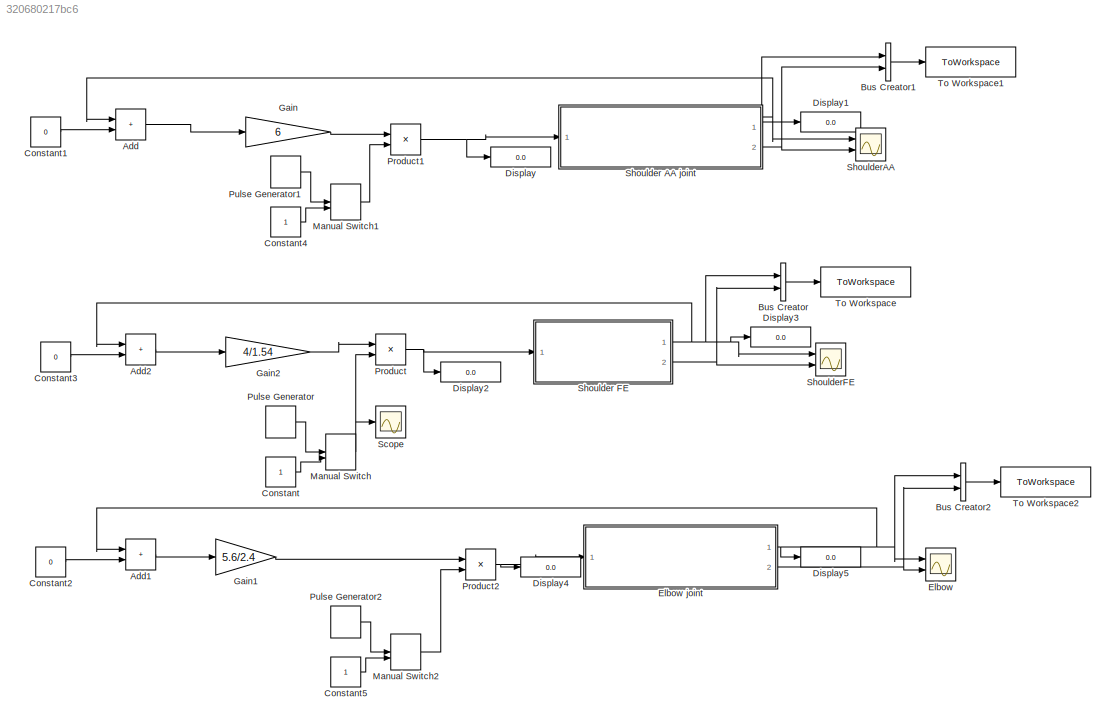
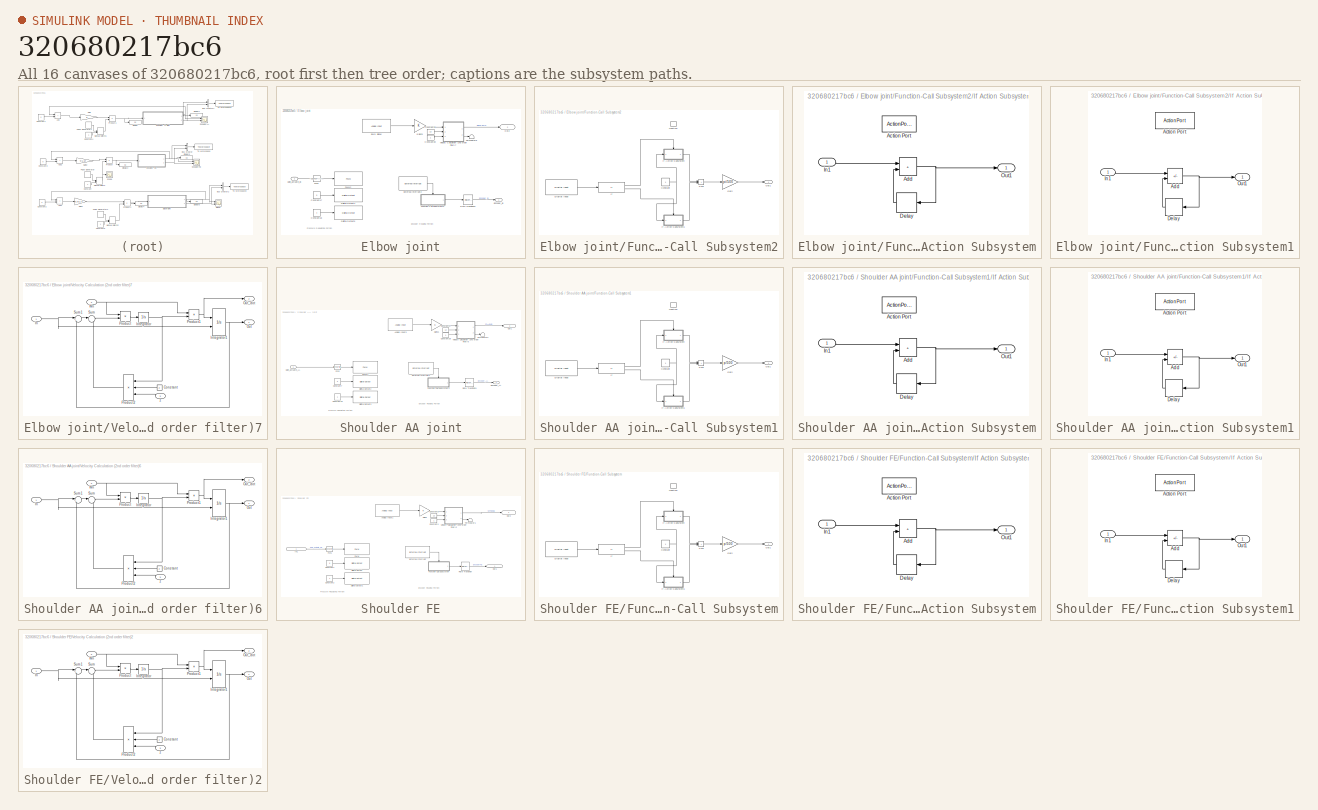
[diagram: thumbnail index - all 16 canvases of the model, root first then tree order]
MODEL slx_320680217bc6
KIND model
CONFIG AbsTol = auto
CONFIG EnableMultiTasking = off
CONFIG FixedStep = st
CONFIG MaxStep = auto
CONFIG MinStep = auto
CONFIG RelTol = 1e-3
CONFIG SampleTimeConstraint = Unconstrained
CONFIG Solver = FixedStepAuto
CONFIG SolverName = FixedStepAuto
CONFIG StartTime = 0.0
CONFIG StopTime = inf
BLOCK [Sum] Add
  IconShape = rectangular
  Ports = [2, 1]
BLOCK [Sum] Add1
  IconShape = rectangular
  Ports = [2, 1]
BLOCK [Sum] Add2
  IconShape = rectangular
  Ports = [2, 1]
BLOCK [BusCreator] Bus Creator
  DisplayOption = bar
  InheritFromInputs = on
  Inputs = 2
  Ports = [2, 1]
BLOCK [BusCreator] Bus Creator1
  DisplayOption = bar
  InheritFromInputs = on
  Inputs = 2
  Ports = [2, 1]
BLOCK [BusCreator] Bus Creator2
  DisplayOption = bar
  InheritFromInputs = on
  Inputs = 2
  Ports = [2, 1]
BLOCK [Constant] Constant
BLOCK [Constant] Constant1
  Value = 0
BLOCK [Constant] Constant2
  Value = 0
BLOCK [Constant] Constant3
  Value = 0
BLOCK [Constant] Constant4
BLOCK [Constant] Constant5
BLOCK [Display] Display
  Decimation = 1
  Ports = [1]
BLOCK [Display] Display1
  Decimation = 1
  Ports = [1]
BLOCK [Display] Display2
  Decimation = 1
  Ports = [1]
BLOCK [Display] Display3
  Decimation = 1
  Ports = [1]
BLOCK [Display] Display4
  Decimation = 1
  Ports = [1]
BLOCK [Display] Display5
  Decimation = 1
  Ports = [1]
BLOCK [Scope] Elbow
  Floating = off
  NumInputPorts = 2
  Ports = [2]
  ScopeSpecificationString = Simulink.scopes.TimeScopeBlockCfg('CurrentConfiguration', extmgr.ConfigurationSet(extmgr.Configuration('Core','General UI',true),extmgr.Configuration('Core','Source UI',true),extmgr.Configuration('Sources','WiredSimulink',true,'DataLogging',true,'DataLoggingSaveFormat','StructureWithTime','DataLoggingVariableName','ScopeData2'),extmgr.Configuration('Visuals','Time Domain',true,'SerializedDisplays'...<+2132ch>
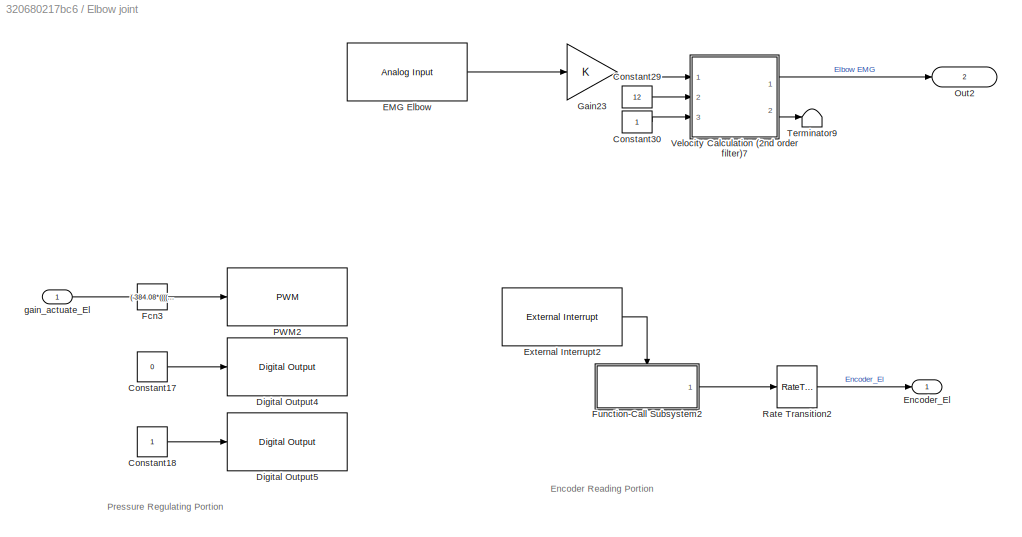
BLOCK [SubSystem] Elbow joint
  Ports = [1, 2]
  RequestExecContextInheritance = off
BLOCK [Constant] Elbow joint/Constant17
  SampleTime = -1
  Value = 0
BLOCK [Constant] Elbow joint/Constant18
  SampleTime = -1
BLOCK [Constant] Elbow joint/Constant29
  Value = 12
BLOCK [Constant] Elbow joint/Constant30
BLOCK [Reference] Elbow joint/Digital Output4  REF=arduinolib/Digital Output
  Ports = [1]
  SourceBlock = arduinolib/Digital Output
  SourceProductBaseCode = ARDUINO
  SourceType = Arduino Digital Output
BLOCK [Reference] Elbow joint/Digital Output5  REF=arduinolib/Digital Output
  Ports = [1]
  SourceBlock = arduinolib/Digital Output
  SourceProductBaseCode = ARDUINO
  SourceType = Arduino Digital Output
BLOCK [Reference] Elbow joint/EMG Elbow  REF=arduinolib/Analog Input
  Ports = [0, 1]
  SourceBlock = arduinolib/Analog Input
  SourceProductBaseCode = ARDUINO
  SourceType = Arduino Analog Input
BLOCK [Outport] Elbow joint/Encoder_El
BLOCK [Reference] Elbow joint/External Interrupt2  REF=arduinolib/External Interrupt
  Ports = [0, 1]
  SourceBlock = arduinolib/External Interrupt
  SourceProductBaseCode = ARDUINO
  SourceType = Arduino Interrupt Block
BLOCK [Fcn] Elbow joint/Fcn3
  Expr = (-384.08*((((u(1)*14.5038))/90))^4 + 789.52*((((u(1)*14.5038))/90))^3 - 618.81*((((u(1)*14.5038))/90))^2 + 468.18*((((u(1)*14.5038))/90)))
BLOCK [SubSystem] Elbow joint/Function-Call Subsystem2
  Ports = [0, 1, 0, 1]
  RequestExecContextInheritance = off
  TreatAsAtomicUnit = on
BLOCK [Constant] Elbow joint/Function-Call Subsystem2/Constant
BLOCK [Reference] Elbow joint/Function-Call Subsystem2/Digital Input  REF=arduinolib/Digital Input
  Ports = [0, 1]
  SourceBlock = arduinolib/Digital Input
  SourceProductBaseCode = ARDUINO
  SourceType = Arduino Digital Input
BLOCK [Gain] Elbow joint/Function-Call Subsystem2/Gain
  Gain = pi/500
BLOCK [If] Elbow joint/Function-Call Subsystem2/If
  ElseIfExpressions = u1 == 1
  IfExpression = u1 == 0
  Ports = [1, 2]
  ShowElse = off
BLOCK [SubSystem] Elbow joint/Function-Call Subsystem2/If Action Subsystem
  Ports = [1, 1, 0, 0, 0, 0, 0, 1]
  RequestExecContextInheritance = off
  TreatAsAtomicUnit = on
BLOCK [ActionPort] Elbow joint/Function-Call Subsystem2/If Action Subsystem/Action Port
  ActionPortLabel = if(u1 == 0)
BLOCK [Sum] Elbow joint/Function-Call Subsystem2/If Action Subsystem/Add
  IconShape = rectangular
  Ports = [2, 1]
BLOCK [Delay] Elbow joint/Function-Call Subsystem2/If Action Subsystem/Delay
  DelayLength = 1
  InputPortMap = u0
  Ports = [1, 1]
BLOCK [Inport] Elbow joint/Function-Call Subsystem2/If Action Subsystem/In1
BLOCK [Outport] Elbow joint/Function-Call Subsystem2/If Action Subsystem/Out1
BLOCK [SubSystem] Elbow joint/Function-Call Subsystem2/If Action Subsystem1
  Ports = [1, 1, 0, 0, 0, 0, 0, 1]
  RequestExecContextInheritance = off
  TreatAsAtomicUnit = on
BLOCK [ActionPort] Elbow joint/Function-Call Subsystem2/If Action Subsystem1/Action Port
  ActionPortLabel = elseif(u1 == 1)
BLOCK [Sum] Elbow joint/Function-Call Subsystem2/If Action Subsystem1/Add
  IconShape = rectangular
  Inputs = -+
  Ports = [2, 1]
BLOCK [Delay] Elbow joint/Function-Call Subsystem2/If Action Subsystem1/Delay
  DelayLength = 1
  InputPortMap = u0
  Ports = [1, 1]
BLOCK [Inport] Elbow joint/Function-Call Subsystem2/If Action Subsystem1/In1
BLOCK [Outport] Elbow joint/Function-Call Subsystem2/If Action Subsystem1/Out1
BLOCK [Outport] Elbow joint/Function-Call Subsystem2/Out1
BLOCK [Sum] Elbow joint/Function-Call Subsystem2/Sum
  IconShape = rectangular
  Ports = [2, 1]
BLOCK [TriggerPort] Elbow joint/Function-Call Subsystem2/function
  Ports = []
  StatesWhenEnabling = held
  TriggerType = function-call
  VariantControl = Variant
BLOCK [Gain] Elbow joint/Gain23
  OutDataTypeStr = double
BLOCK [Outport] Elbow joint/Out2
  IconDisplay = Signal name
  Port = 2
BLOCK [Reference] Elbow joint/PWM2  REF=arduinolib/PWM
  Ports = [1]
  SourceBlock = arduinolib/PWM
  SourceProductBaseCode = ARDUINO
  SourceType = Arduino PWM
BLOCK [RateTransition] Elbow joint/Rate Transition2
  Deterministic = off
  OutPortSampleTimeOpt = Inherit
BLOCK [Terminator] Elbow joint/Terminator9
BLOCK [SubSystem] Elbow joint/Velocity Calculation (2nd order filter)7
  Ports = [3, 2]
  RequestExecContextInheritance = off
BLOCK [Constant] Elbow joint/Velocity Calculation (2nd order filter)7/Constant
  Value = 2
BLOCK [Inport] Elbow joint/Velocity Calculation (2nd order filter)7/In
BLOCK [Integrator] Elbow joint/Velocity Calculation (2nd order filter)7/Integrator
  Ports = [1, 1]
BLOCK [Integrator] Elbow joint/Velocity Calculation (2nd order filter)7/Integrator1
  InitialConditionSource = external
  Ports = [2, 1]
BLOCK [Outport] Elbow joint/Velocity Calculation (2nd order filter)7/Out
BLOCK [Outport] Elbow joint/Velocity Calculation (2nd order filter)7/Out_dot
  Port = 2
BLOCK [Product] Elbow joint/Velocity Calculation (2nd order filter)7/Product
  Ports = [2, 1]
  RndMeth = Zero
BLOCK [Product] Elbow joint/Velocity Calculation (2nd order filter)7/Product1
  Ports = [2, 1]
  RndMeth = Zero
BLOCK [Product] Elbow joint/Velocity Calculation (2nd order filter)7/Product2
  Inputs = 3
  Ports = [3, 1]
  RndMeth = Zero
BLOCK [Sum] Elbow joint/Velocity Calculation (2nd order filter)7/Sum
  Inputs = |+-
  Ports = [2, 1]
BLOCK [Sum] Elbow joint/Velocity Calculation (2nd order filter)7/Sum1
  Inputs = |+-
  Ports = [2, 1]
BLOCK [Inport] Elbow joint/Velocity Calculation (2nd order filter)7/Wn
  Port = 2
BLOCK [Inport] Elbow joint/Velocity Calculation (2nd order filter)7/z
  Port = 3
BLOCK [Inport] Elbow joint/gain_actuate_El
BLOCK [Gain] Gain
  Gain = 6
BLOCK [Gain] Gain1
  Gain = 5.6/2.4
BLOCK [Gain] Gain2
  Gain = 4/1.54
BLOCK [ManualSwitch] Manual Switch
  CurrentSetting = 0
BLOCK [ManualSwitch] Manual Switch1
  CurrentSetting = 0
BLOCK [ManualSwitch] Manual Switch2
  CurrentSetting = 0
BLOCK [Product] Product
  Ports = [2, 1]
BLOCK [Product] Product1
  Ports = [2, 1]
BLOCK [Product] Product2
  Ports = [2, 1]
BLOCK [DiscretePulseGenerator] Pulse Generator
  Period = 7
  Ports = [0, 1]
  PulseType = Time based
  PulseWidth = 90
BLOCK [DiscretePulseGenerator] Pulse Generator1
  Period = 7
  Ports = [0, 1]
  PulseType = Time based
  PulseWidth = 90
BLOCK [DiscretePulseGenerator] Pulse Generator2
  Period = 7
  Ports = [0, 1]
  PulseType = Time based
  PulseWidth = 90
BLOCK [Scope] Scope
  Floating = off
  NumInputPorts = 1
  Ports = [1]
  ScopeSpecificationString = Simulink.scopes.TimeScopeBlockCfg('CurrentConfiguration', extmgr.ConfigurationSet(extmgr.Configuration('Core','General UI',true),extmgr.Configuration('Core','Source UI',true),extmgr.Configuration('Sources','WiredSimulink',true,'DataLoggingVariableName','ScopeData1'),extmgr.Configuration('Visuals','Time Domain',true,'SerializedDisplays',{struct('MinYLimReal','0.9','MaxYLimReal','1.1','YLabelReal','...<+1399ch>
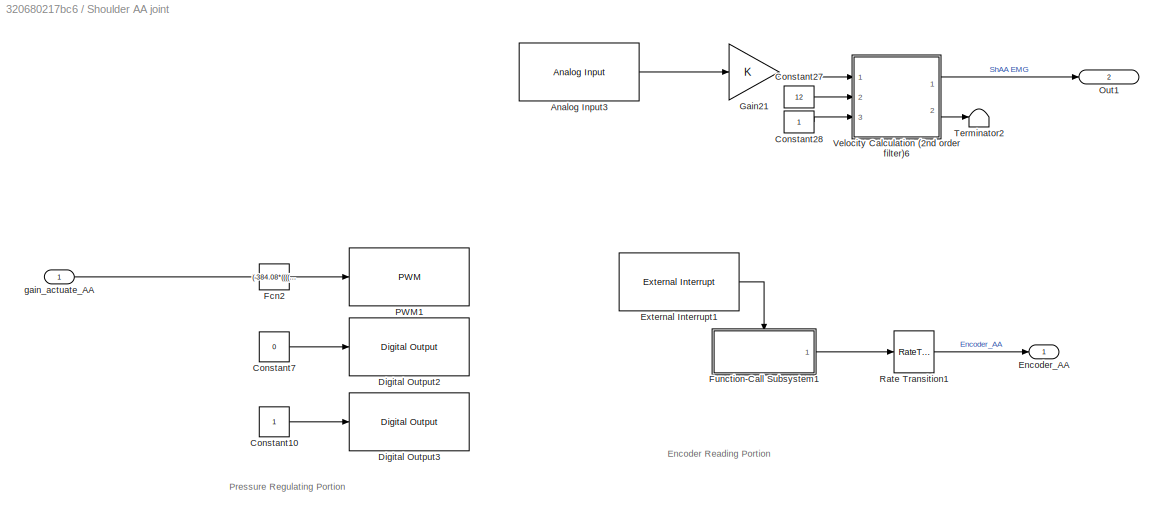
BLOCK [SubSystem] Shoulder AA joint
  Ports = [1, 2]
  RequestExecContextInheritance = off
BLOCK [Reference] Shoulder AA joint/Analog Input3  REF=arduinolib/Analog Input
  Ports = [0, 1]
  SourceBlock = arduinolib/Analog Input
  SourceProductBaseCode = ARDUINO
  SourceType = Arduino Analog Input
BLOCK [Constant] Shoulder AA joint/Constant10
  SampleTime = -1
BLOCK [Constant] Shoulder AA joint/Constant27
  Value = 12
BLOCK [Constant] Shoulder AA joint/Constant28
BLOCK [Constant] Shoulder AA joint/Constant7
  SampleTime = -1
  Value = 0
BLOCK [Reference] Shoulder AA joint/Digital Output2  REF=arduinolib/Digital Output
  Ports = [1]
  SourceBlock = arduinolib/Digital Output
  SourceProductBaseCode = ARDUINO
  SourceType = Arduino Digital Output
BLOCK [Reference] Shoulder AA joint/Digital Output3  REF=arduinolib/Digital Output
  Ports = [1]
  SourceBlock = arduinolib/Digital Output
  SourceProductBaseCode = ARDUINO
  SourceType = Arduino Digital Output
BLOCK [Outport] Shoulder AA joint/Encoder_AA
BLOCK [Reference] Shoulder AA joint/External Interrupt1  REF=arduinolib/External Interrupt
  Ports = [0, 1]
  SourceBlock = arduinolib/External Interrupt
  SourceProductBaseCode = ARDUINO
  SourceType = Arduino Interrupt Block
BLOCK [Fcn] Shoulder AA joint/Fcn2
  Expr = (-384.08*((((u(1)*14.5038))/90))^4 + 789.52*((((u(1)*14.5038))/90))^3 - 618.81*((((u(1)*14.5038))/90))^2 + 468.18*((((u(1)*14.5038))/90)))
BLOCK [SubSystem] Shoulder AA joint/Function-Call Subsystem1
  Ports = [0, 1, 0, 1]
  RequestExecContextInheritance = off
  TreatAsAtomicUnit = on
BLOCK [Constant] Shoulder AA joint/Function-Call Subsystem1/Constant
BLOCK [Reference] Shoulder AA joint/Function-Call Subsystem1/Digital Input  REF=arduinolib/Digital Input
  Ports = [0, 1]
  SourceBlock = arduinolib/Digital Input
  SourceProductBaseCode = ARDUINO
  SourceType = Arduino Digital Input
BLOCK [Gain] Shoulder AA joint/Function-Call Subsystem1/Gain
  Gain = p/500
BLOCK [If] Shoulder AA joint/Function-Call Subsystem1/If
  ElseIfExpressions = u1 == 1
  IfExpression = u1 == 0
  Ports = [1, 2]
  ShowElse = off
BLOCK [SubSystem] Shoulder AA joint/Function-Call Subsystem1/If Action Subsystem
  Ports = [1, 1, 0, 0, 0, 0, 0, 1]
  RequestExecContextInheritance = off
  TreatAsAtomicUnit = on
BLOCK [ActionPort] Shoulder AA joint/Function-Call Subsystem1/If Action Subsystem/Action Port
  ActionPortLabel = if(u1 == 0)
BLOCK [Sum] Shoulder AA joint/Function-Call Subsystem1/If Action Subsystem/Add
  IconShape = rectangular
  Ports = [2, 1]
BLOCK [Delay] Shoulder AA joint/Function-Call Subsystem1/If Action Subsystem/Delay
  DelayLength = 1
  InputPortMap = u0
  Ports = [1, 1]
BLOCK [Inport] Shoulder AA joint/Function-Call Subsystem1/If Action Subsystem/In1
BLOCK [Outport] Shoulder AA joint/Function-Call Subsystem1/If Action Subsystem/Out1
BLOCK [SubSystem] Shoulder AA joint/Function-Call Subsystem1/If Action Subsystem1
  Ports = [1, 1, 0, 0, 0, 0, 0, 1]
  RequestExecContextInheritance = off
  TreatAsAtomicUnit = on
BLOCK [ActionPort] Shoulder AA joint/Function-Call Subsystem1/If Action Subsystem1/Action Port
  ActionPortLabel = elseif(u1 == 1)
BLOCK [Sum] Shoulder AA joint/Function-Call Subsystem1/If Action Subsystem1/Add
  IconShape = rectangular
  Inputs = -+
  Ports = [2, 1]
BLOCK [Delay] Shoulder AA joint/Function-Call Subsystem1/If Action Subsystem1/Delay
  DelayLength = 1
  InputPortMap = u0
  Ports = [1, 1]
BLOCK [Inport] Shoulder AA joint/Function-Call Subsystem1/If Action Subsystem1/In1
BLOCK [Outport] Shoulder AA joint/Function-Call Subsystem1/If Action Subsystem1/Out1
BLOCK [Outport] Shoulder AA joint/Function-Call Subsystem1/Out1
BLOCK [Sum] Shoulder AA joint/Function-Call Subsystem1/Sum
  IconShape = rectangular
  Ports = [2, 1]
BLOCK [TriggerPort] Shoulder AA joint/Function-Call Subsystem1/function
  Ports = []
  StatesWhenEnabling = held
  TriggerType = function-call
  VariantControl = Variant
BLOCK [Gain] Shoulder AA joint/Gain21
  OutDataTypeStr = double
BLOCK [Outport] Shoulder AA joint/Out1
  IconDisplay = Signal name
  Port = 2
BLOCK [Reference] Shoulder AA joint/PWM1  REF=arduinolib/PWM
  Ports = [1]
  SourceBlock = arduinolib/PWM
  SourceProductBaseCode = ARDUINO
  SourceType = Arduino PWM
BLOCK [RateTransition] Shoulder AA joint/Rate Transition1
  Deterministic = off
  OutPortSampleTimeOpt = Inherit
BLOCK [Terminator] Shoulder AA joint/Terminator2
BLOCK [SubSystem] Shoulder AA joint/Velocity Calculation (2nd order filter)6
  Ports = [3, 2]
  RequestExecContextInheritance = off
BLOCK [Constant] Shoulder AA joint/Velocity Calculation (2nd order filter)6/Constant
  Value = 2
BLOCK [Inport] Shoulder AA joint/Velocity Calculation (2nd order filter)6/In
BLOCK [Integrator] Shoulder AA joint/Velocity Calculation (2nd order filter)6/Integrator
  Ports = [1, 1]
BLOCK [Integrator] Shoulder AA joint/Velocity Calculation (2nd order filter)6/Integrator1
  InitialConditionSource = external
  Ports = [2, 1]
BLOCK [Outport] Shoulder AA joint/Velocity Calculation (2nd order filter)6/Out
BLOCK [Outport] Shoulder AA joint/Velocity Calculation (2nd order filter)6/Out_dot
  Port = 2
BLOCK [Product] Shoulder AA joint/Velocity Calculation (2nd order filter)6/Product
  Ports = [2, 1]
  RndMeth = Zero
BLOCK [Product] Shoulder AA joint/Velocity Calculation (2nd order filter)6/Product1
  Ports = [2, 1]
  RndMeth = Zero
BLOCK [Product] Shoulder AA joint/Velocity Calculation (2nd order filter)6/Product2
  Inputs = 3
  Ports = [3, 1]
  RndMeth = Zero
BLOCK [Sum] Shoulder AA joint/Velocity Calculation (2nd order filter)6/Sum
  Inputs = |+-
  Ports = [2, 1]
BLOCK [Sum] Shoulder AA joint/Velocity Calculation (2nd order filter)6/Sum1
  Inputs = |+-
  Ports = [2, 1]
BLOCK [Inport] Shoulder AA joint/Velocity Calculation (2nd order filter)6/Wn
  Port = 2
BLOCK [Inport] Shoulder AA joint/Velocity Calculation (2nd order filter)6/z
  Port = 3
BLOCK [Inport] Shoulder AA joint/gain_actuate_AA
BLOCK [SubSystem] Shoulder FE
  Ports = [1, 2]
  RequestExecContextInheritance = off
BLOCK [Reference] Shoulder FE/Analog Input1  REF=arduinolib/Analog Input
  Ports = [0, 1]
  SourceBlock = arduinolib/Analog Input
  SourceProductBaseCode = ARDUINO
  SourceType = Arduino Analog Input
BLOCK [Constant] Shoulder FE/Constant1
  SampleTime = -1
  Value = 0
BLOCK [Constant] Shoulder FE/Constant2
  SampleTime = -1
BLOCK [Constant] Shoulder FE/Constant3
  Value = 12
BLOCK [Constant] Shoulder FE/Constant4
BLOCK [Reference] Shoulder FE/Digital Output  REF=arduinolib/Digital Output
  Ports = [1]
  SourceBlock = arduinolib/Digital Output
  SourceProductBaseCode = ARDUINO
  SourceType = Arduino Digital Output
BLOCK [Reference] Shoulder FE/Digital Output1  REF=arduinolib/Digital Output
  Ports = [1]
  SourceBlock = arduinolib/Digital Output
  SourceProductBaseCode = ARDUINO
  SourceType = Arduino Digital Output
BLOCK [Reference] Shoulder FE/External Interrupt  REF=arduinolib/External Interrupt
  Ports = [0, 1]
  SourceBlock = arduinolib/External Interrupt
  SourceProductBaseCode = ARDUINO
  SourceType = Arduino Interrupt Block
BLOCK [Fcn] Shoulder FE/Fcn1
  Expr = (-384.08*((((u(1)*14.5038))/90))^4 + 789.52*((((u(1)*14.5038))/90))^3 - 618.81*((((u(1)*14.5038))/90))^2 + 468.18*((((u(1)*14.5038))/90)))
BLOCK [SubSystem] Shoulder FE/Function-Call Subsystem
  Ports = [0, 1, 0, 1]
  RequestExecContextInheritance = off
  TreatAsAtomicUnit = on
BLOCK [Constant] Shoulder FE/Function-Call Subsystem/Constant
BLOCK [Reference] Shoulder FE/Function-Call Subsystem/Digital Input  REF=arduinolib/Digital Input
  Ports = [0, 1]
  SourceBlock = arduinolib/Digital Input
  SourceProductBaseCode = ARDUINO
  SourceType = Arduino Digital Input
BLOCK [Gain] Shoulder FE/Function-Call Subsystem/Gain
  Gain = p/500
BLOCK [If] Shoulder FE/Function-Call Subsystem/If
  ElseIfExpressions = u1 == 1
  IfExpression = u1 == 0
  Ports = [1, 2]
  ShowElse = off
BLOCK [SubSystem] Shoulder FE/Function-Call Subsystem/If Action Subsystem
  Ports = [1, 1, 0, 0, 0, 0, 0, 1]
  RequestExecContextInheritance = off
  TreatAsAtomicUnit = on
BLOCK [ActionPort] Shoulder FE/Function-Call Subsystem/If Action Subsystem/Action Port
  ActionPortLabel = if(u1 == 0)
BLOCK [Sum] Shoulder FE/Function-Call Subsystem/If Action Subsystem/Add
  IconShape = rectangular
  Ports = [2, 1]
BLOCK [Delay] Shoulder FE/Function-Call Subsystem/If Action Subsystem/Delay
  DelayLength = 1
  InputPortMap = u0
  Ports = [1, 1]
BLOCK [Inport] Shoulder FE/Function-Call Subsystem/If Action Subsystem/In1
BLOCK [Outport] Shoulder FE/Function-Call Subsystem/If Action Subsystem/Out1
BLOCK [SubSystem] Shoulder FE/Function-Call Subsystem/If Action Subsystem1
  Ports = [1, 1, 0, 0, 0, 0, 0, 1]
  RequestExecContextInheritance = off
  TreatAsAtomicUnit = on
BLOCK [ActionPort] Shoulder FE/Function-Call Subsystem/If Action Subsystem1/Action Port
  ActionPortLabel = elseif(u1 == 1)
BLOCK [Sum] Shoulder FE/Function-Call Subsystem/If Action Subsystem1/Add
  IconShape = rectangular
  Inputs = -+
  Ports = [2, 1]
BLOCK [Delay] Shoulder FE/Function-Call Subsystem/If Action Subsystem1/Delay
  DelayLength = 1
  InputPortMap = u0
  Ports = [1, 1]
BLOCK [Inport] Shoulder FE/Function-Call Subsystem/If Action Subsystem1/In1
BLOCK [Outport] Shoulder FE/Function-Call Subsystem/If Action Subsystem1/Out1
BLOCK [Outport] Shoulder FE/Function-Call Subsystem/Out1
BLOCK [Sum] Shoulder FE/Function-Call Subsystem/Sum
  IconShape = rectangular
  Ports = [2, 1]
BLOCK [TriggerPort] Shoulder FE/Function-Call Subsystem/function
  Ports = []
  StatesWhenEnabling = held
  TriggerType = function-call
  VariantControl = Variant
BLOCK [Gain] Shoulder FE/Gain2
  OutDataTypeStr = double
BLOCK [Inport] Shoulder FE/In1
  IconDisplay = Signal name
BLOCK [Outport] Shoulder FE/Out1
  IconDisplay = Signal name
BLOCK [Outport] Shoulder FE/Out2
  IconDisplay = Signal name
  Port = 2
BLOCK [Reference] Shoulder FE/PWM  REF=arduinolib/PWM
  Ports = [1]
  SourceBlock = arduinolib/PWM
  SourceProductBaseCode = ARDUINO
  SourceType = Arduino PWM
BLOCK [RateTransition] Shoulder FE/Rate Transition
  Deterministic = off
  OutPortSampleTimeOpt = Inherit
BLOCK [Terminator] Shoulder FE/Terminator1
BLOCK [SubSystem] Shoulder FE/Velocity Calculation (2nd order filter)2
  Ports = [3, 2]
  RequestExecContextInheritance = off
BLOCK [Constant] Shoulder FE/Velocity Calculation (2nd order filter)2/Constant
  Value = 2
BLOCK [Inport] Shoulder FE/Velocity Calculation (2nd order filter)2/In
BLOCK [Integrator] Shoulder FE/Velocity Calculation (2nd order filter)2/Integrator
  Ports = [1, 1]
BLOCK [Integrator] Shoulder FE/Velocity Calculation (2nd order filter)2/Integrator1
  InitialConditionSource = external
  Ports = [2, 1]
BLOCK [Outport] Shoulder FE/Velocity Calculation (2nd order filter)2/Out
BLOCK [Outport] Shoulder FE/Velocity Calculation (2nd order filter)2/Out_dot
  Port = 2
BLOCK [Product] Shoulder FE/Velocity Calculation (2nd order filter)2/Product
  Ports = [2, 1]
  RndMeth = Zero
BLOCK [Product] Shoulder FE/Velocity Calculation (2nd order filter)2/Product1
  Ports = [2, 1]
  RndMeth = Zero
BLOCK [Product] Shoulder FE/Velocity Calculation (2nd order filter)2/Product2
  Inputs = 3
  Ports = [3, 1]
  RndMeth = Zero
BLOCK [Sum] Shoulder FE/Velocity Calculation (2nd order filter)2/Sum
  Inputs = |+-
  Ports = [2, 1]
BLOCK [Sum] Shoulder FE/Velocity Calculation (2nd order filter)2/Sum1
  Inputs = |+-
  Ports = [2, 1]
BLOCK [Inport] Shoulder FE/Velocity Calculation (2nd order filter)2/Wn
  Port = 2
BLOCK [Inport] Shoulder FE/Velocity Calculation (2nd order filter)2/z
  Port = 3
BLOCK [Scope] ShoulderAA
  Floating = off
  NumInputPorts = 2
  Ports = [2]
  ScopeSpecificationString = Simulink.scopes.TimeScopeBlockCfg('CurrentConfiguration', extmgr.ConfigurationSet(extmgr.Configuration('Core','General UI',true),extmgr.Configuration('Core','Source UI',true),extmgr.Configuration('Sources','WiredSimulink',true,'DataLogging',true,'DataLoggingSaveFormat','StructureWithTime','DataLoggingVariableName','ScopeData1'),extmgr.Configuration('Visuals','Time Domain',true,'SerializedDisplays'...<+2134ch>
BLOCK [Scope] ShoulderFE
  Floating = off
  NumInputPorts = 2
  Ports = [2]
  ScopeSpecificationString = Simulink.scopes.TimeScopeBlockCfg('CurrentConfiguration', extmgr.ConfigurationSet(extmgr.Configuration('Core','General UI',true),extmgr.Configuration('Core','Source UI',true),extmgr.Configuration('Sources','WiredSimulink',true,'DataLogging',true,'DataLoggingSaveFormat','StructureWithTime','DataLoggingVariableName','ScopeData2'),extmgr.Configuration('Visuals','Time Domain',true,'SerializedDisplays'...<+2123ch>
BLOCK [ToWorkspace] To Workspace
  FixptAsFi = on
  MaxDataPoints = inf
  Ports = [1]
  SampleTime = -1
  VariableName = ShFE
BLOCK [ToWorkspace] To Workspace1
  FixptAsFi = on
  MaxDataPoints = inf
  Ports = [1]
  SampleTime = -1
  VariableName = ShAA
BLOCK [ToWorkspace] To Workspace2
  FixptAsFi = on
  MaxDataPoints = inf
  Ports = [1]
  SampleTime = -1
  VariableName = Elbow
ANNOTATION Elbow joint: Encoder Reading Portion
ANNOTATION Elbow joint: Pressure Regulating Portion
ANNOTATION Shoulder AA joint: Encoder Reading Portion
ANNOTATION Shoulder AA joint: Pressure Regulating Portion
ANNOTATION Shoulder FE: Encoder Reading Portion
ANNOTATION Shoulder FE: Pressure Regulating Portion
LINE Add1:1 -> Gain1:1
LINE Add2:1 -> Gain2:1
LINE Add:1 -> Gain:1
LINE Bus Creator1:1 -> To Workspace1:1
LINE Bus Creator2:1 -> To Workspace2:1
LINE Bus Creator:1 -> To Workspace:1
LINE Constant1:1 -> Add:2
LINE Constant2:1 -> Add1:2
LINE Constant3:1 -> Add2:2
LINE Constant4:1 -> Manual Switch1:2
LINE Constant5:1 -> Manual Switch2:2
LINE Constant:1 -> Manual Switch:2
LINE Elbow joint/Constant17:1 -> Elbow joint/Digital Output4:1
LINE Elbow joint/Constant18:1 -> Elbow joint/Digital Output5:1
LINE Elbow joint/Constant29:1 -> Elbow joint/Velocity Calculation (2nd order filter)7:2
LINE Elbow joint/Constant30:1 -> Elbow joint/Velocity Calculation (2nd order filter)7:3
LINE Elbow joint/EMG Elbow:1 -> Elbow joint/Gain23:1
LINE Elbow joint/External Interrupt2:1 -> Elbow joint/Function-Call Subsystem2:trigger
LINE Elbow joint/Fcn3:1 -> Elbow joint/PWM2:1
NET Elbow joint/Function-Call Subsystem2/Constant:1 -> Elbow joint/Function-Call Subsystem2/If Action Subsystem1:1, Elbow joint/Function-Call Subsystem2/If Action Subsystem:1
LINE Elbow joint/Function-Call Subsystem2/Digital Input:1 -> Elbow joint/Function-Call Subsystem2/If:1
LINE Elbow joint/Function-Call Subsystem2/Gain:1 -> Elbow joint/Function-Call Subsystem2/Out1:1
NET Elbow joint/Function-Call Subsystem2/If Action Subsystem/Add:1 -> Elbow joint/Function-Call Subsystem2/If Action Subsystem/Delay:1, Elbow joint/Function-Call Subsystem2/If Action Subsystem/Out1:1
LINE Elbow joint/Function-Call Subsystem2/If Action Subsystem/Delay:1 -> Elbow joint/Function-Call Subsystem2/If Action Subsystem/Add:2
LINE Elbow joint/Function-Call Subsystem2/If Action Subsystem/In1:1 -> Elbow joint/Function-Call Subsystem2/If Action Subsystem/Add:1
NET Elbow joint/Function-Call Subsystem2/If Action Subsystem1/Add:1 -> Elbow joint/Function-Call Subsystem2/If Action Subsystem1/Delay:1, Elbow joint/Function-Call Subsystem2/If Action Subsystem1/Out1:1
LINE Elbow joint/Function-Call Subsystem2/If Action Subsystem1/Delay:1 -> Elbow joint/Function-Call Subsystem2/If Action Subsystem1/Add:2
LINE Elbow joint/Function-Call Subsystem2/If Action Subsystem1/In1:1 -> Elbow joint/Function-Call Subsystem2/If Action Subsystem1/Add:1
LINE Elbow joint/Function-Call Subsystem2/If Action Subsystem1:1 -> Elbow joint/Function-Call Subsystem2/Sum:2
LINE Elbow joint/Function-Call Subsystem2/If Action Subsystem:1 -> Elbow joint/Function-Call Subsystem2/Sum:1
LINE Elbow joint/Function-Call Subsystem2/If:1 -> Elbow joint/Function-Call Subsystem2/If Action Subsystem:ifaction
LINE Elbow joint/Function-Call Subsystem2/If:2 -> Elbow joint/Function-Call Subsystem2/If Action Subsystem1:ifaction
LINE Elbow joint/Function-Call Subsystem2/Sum:1 -> Elbow joint/Function-Call Subsystem2/Gain:1
LINE Elbow joint/Function-Call Subsystem2:1 -> Elbow joint/Rate Transition2:1
LINE Elbow joint/Gain23:1 -> Elbow joint/Velocity Calculation (2nd order filter)7:1
LINE Elbow joint/Rate Transition2:1 -> Elbow joint/Encoder_El:1
LINE Elbow joint/Velocity Calculation (2nd order filter)7/Constant:1 -> Elbow joint/Velocity Calculation (2nd order filter)7/Product2:2
NET Elbow joint/Velocity Calculation (2nd order filter)7/In:1 -> Elbow joint/Velocity Calculation (2nd order filter)7/Integrator1:2, Elbow joint/Velocity Calculation (2nd order filter)7/Sum1:1
NET Elbow joint/Velocity Calculation (2nd order filter)7/Integrator1:1 -> Elbow joint/Velocity Calculation (2nd order filter)7/Out:1, Elbow joint/Velocity Calculation (2nd order filter)7/Sum1:2
NET Elbow joint/Velocity Calculation (2nd order filter)7/Integrator:1 -> Elbow joint/Velocity Calculation (2nd order filter)7/Product1:2, Elbow joint/Velocity Calculation (2nd order filter)7/Product2:1
NET Elbow joint/Velocity Calculation (2nd order filter)7/Product1:1 -> Elbow joint/Velocity Calculation (2nd order filter)7/Integrator1:1, Elbow joint/Velocity Calculation (2nd order filter)7/Out_dot:1
LINE Elbow joint/Velocity Calculation (2nd order filter)7/Product2:1 -> Elbow joint/Velocity Calculation (2nd order filter)7/Sum:2
LINE Elbow joint/Velocity Calculation (2nd order filter)7/Product:1 -> Elbow joint/Velocity Calculation (2nd order filter)7/Integrator:1
LINE Elbow joint/Velocity Calculation (2nd order filter)7/Sum1:1 -> Elbow joint/Velocity Calculation (2nd order filter)7/Sum:1
LINE Elbow joint/Velocity Calculation (2nd order filter)7/Sum:1 -> Elbow joint/Velocity Calculation (2nd order filter)7/Product:2
NET Elbow joint/Velocity Calculation (2nd order filter)7/Wn:1 -> Elbow joint/Velocity Calculation (2nd order filter)7/Product1:1, Elbow joint/Velocity Calculation (2nd order filter)7/Product:1
LINE Elbow joint/Velocity Calculation (2nd order filter)7/z:1 -> Elbow joint/Velocity Calculation (2nd order filter)7/Product2:3
LINE Elbow joint/Velocity Calculation (2nd order filter)7:1 -> Elbow joint/Out2:1
LINE Elbow joint/Velocity Calculation (2nd order filter)7:2 -> Elbow joint/Terminator9:1
LINE Elbow joint/gain_actuate_El:1 -> Elbow joint/Fcn3:1
NET Elbow joint:1 -> Add1:1, Bus Creator2:1, Display5:1, Elbow:1
NET Elbow joint:2 -> Bus Creator2:2, Elbow:2
LINE Gain1:1 -> Product2:1
LINE Gain2:1 -> Product:1
LINE Gain:1 -> Product1:1
LINE Manual Switch1:1 -> Product1:2
LINE Manual Switch2:1 -> Product2:2
NET Manual Switch:1 -> Product:2, Scope:1
NET Product1:1 -> Display:1, Shoulder AA joint:1
NET Product2:1 -> Display4:1, Elbow joint:1
NET Product:1 -> Display2:1, Shoulder FE:1
LINE Pulse Generator1:1 -> Manual Switch1:1
LINE Pulse Generator2:1 -> Manual Switch2:1
LINE Pulse Generator:1 -> Manual Switch:1
LINE Shoulder AA joint/Analog Input3:1 -> Shoulder AA joint/Gain21:1
LINE Shoulder AA joint/Constant10:1 -> Shoulder AA joint/Digital Output3:1
LINE Shoulder AA joint/Constant27:1 -> Shoulder AA joint/Velocity Calculation (2nd order filter)6:2
LINE Shoulder AA joint/Constant28:1 -> Shoulder AA joint/Velocity Calculation (2nd order filter)6:3
LINE Shoulder AA joint/Constant7:1 -> Shoulder AA joint/Digital Output2:1
LINE Shoulder AA joint/External Interrupt1:1 -> Shoulder AA joint/Function-Call Subsystem1:trigger
LINE Shoulder AA joint/Fcn2:1 -> Shoulder AA joint/PWM1:1
NET Shoulder AA joint/Function-Call Subsystem1/Constant:1 -> Shoulder AA joint/Function-Call Subsystem1/If Action Subsystem1:1, Shoulder AA joint/Function-Call Subsystem1/If Action Subsystem:1
LINE Shoulder AA joint/Function-Call Subsystem1/Digital Input:1 -> Shoulder AA joint/Function-Call Subsystem1/If:1
LINE Shoulder AA joint/Function-Call Subsystem1/Gain:1 -> Shoulder AA joint/Function-Call Subsystem1/Out1:1
NET Shoulder AA joint/Function-Call Subsystem1/If Action Subsystem/Add:1 -> Shoulder AA joint/Function-Call Subsystem1/If Action Subsystem/Delay:1, Shoulder AA joint/Function-Call Subsystem1/If Action Subsystem/Out1:1
LINE Shoulder AA joint/Function-Call Subsystem1/If Action Subsystem/Delay:1 -> Shoulder AA joint/Function-Call Subsystem1/If Action Subsystem/Add:2
LINE Shoulder AA joint/Function-Call Subsystem1/If Action Subsystem/In1:1 -> Shoulder AA joint/Function-Call Subsystem1/If Action Subsystem/Add:1
NET Shoulder AA joint/Function-Call Subsystem1/If Action Subsystem1/Add:1 -> Shoulder AA joint/Function-Call Subsystem1/If Action Subsystem1/Delay:1, Shoulder AA joint/Function-Call Subsystem1/If Action Subsystem1/Out1:1
LINE Shoulder AA joint/Function-Call Subsystem1/If Action Subsystem1/Delay:1 -> Shoulder AA joint/Function-Call Subsystem1/If Action Subsystem1/Add:2
LINE Shoulder AA joint/Function-Call Subsystem1/If Action Subsystem1/In1:1 -> Shoulder AA joint/Function-Call Subsystem1/If Action Subsystem1/Add:1
LINE Shoulder AA joint/Function-Call Subsystem1/If Action Subsystem1:1 -> Shoulder AA joint/Function-Call Subsystem1/Sum:2
LINE Shoulder AA joint/Function-Call Subsystem1/If Action Subsystem:1 -> Shoulder AA joint/Function-Call Subsystem1/Sum:1
LINE Shoulder AA joint/Function-Call Subsystem1/If:1 -> Shoulder AA joint/Function-Call Subsystem1/If Action Subsystem:ifaction
LINE Shoulder AA joint/Function-Call Subsystem1/If:2 -> Shoulder AA joint/Function-Call Subsystem1/If Action Subsystem1:ifaction
LINE Shoulder AA joint/Function-Call Subsystem1/Sum:1 -> Shoulder AA joint/Function-Call Subsystem1/Gain:1
LINE Shoulder AA joint/Function-Call Subsystem1:1 -> Shoulder AA joint/Rate Transition1:1
LINE Shoulder AA joint/Gain21:1 -> Shoulder AA joint/Velocity Calculation (2nd order filter)6:1
LINE Shoulder AA joint/Rate Transition1:1 -> Shoulder AA joint/Encoder_AA:1
LINE Shoulder AA joint/Velocity Calculation (2nd order filter)6/Constant:1 -> Shoulder AA joint/Velocity Calculation (2nd order filter)6/Product2:2
NET Shoulder AA joint/Velocity Calculation (2nd order filter)6/In:1 -> Shoulder AA joint/Velocity Calculation (2nd order filter)6/Integrator1:2, Shoulder AA joint/Velocity Calculation (2nd order filter)6/Sum1:1
NET Shoulder AA joint/Velocity Calculation (2nd order filter)6/Integrator1:1 -> Shoulder AA joint/Velocity Calculation (2nd order filter)6/Out:1, Shoulder AA joint/Velocity Calculation (2nd order filter)6/Sum1:2
NET Shoulder AA joint/Velocity Calculation (2nd order filter)6/Integrator:1 -> Shoulder AA joint/Velocity Calculation (2nd order filter)6/Product1:2, Shoulder AA joint/Velocity Calculation (2nd order filter)6/Product2:1
NET Shoulder AA joint/Velocity Calculation (2nd order filter)6/Product1:1 -> Shoulder AA joint/Velocity Calculation (2nd order filter)6/Integrator1:1, Shoulder AA joint/Velocity Calculation (2nd order filter)6/Out_dot:1
LINE Shoulder AA joint/Velocity Calculation (2nd order filter)6/Product2:1 -> Shoulder AA joint/Velocity Calculation (2nd order filter)6/Sum:2
LINE Shoulder AA joint/Velocity Calculation (2nd order filter)6/Product:1 -> Shoulder AA joint/Velocity Calculation (2nd order filter)6/Integrator:1
LINE Shoulder AA joint/Velocity Calculation (2nd order filter)6/Sum1:1 -> Shoulder AA joint/Velocity Calculation (2nd order filter)6/Sum:1
LINE Shoulder AA joint/Velocity Calculation (2nd order filter)6/Sum:1 -> Shoulder AA joint/Velocity Calculation (2nd order filter)6/Product:2
NET Shoulder AA joint/Velocity Calculation (2nd order filter)6/Wn:1 -> Shoulder AA joint/Velocity Calculation (2nd order filter)6/Product1:1, Shoulder AA joint/Velocity Calculation (2nd order filter)6/Product:1
LINE Shoulder AA joint/Velocity Calculation (2nd order filter)6/z:1 -> Shoulder AA joint/Velocity Calculation (2nd order filter)6/Product2:3
LINE Shoulder AA joint/Velocity Calculation (2nd order filter)6:1 -> Shoulder AA joint/Out1:1
LINE Shoulder AA joint/Velocity Calculation (2nd order filter)6:2 -> Shoulder AA joint/Terminator2:1
LINE Shoulder AA joint/gain_actuate_AA:1 -> Shoulder AA joint/Fcn2:1
NET Shoulder AA joint:1 -> Add:1, Bus Creator1:1, Display1:1, ShoulderAA:1
NET Shoulder AA joint:2 -> Bus Creator1:2, ShoulderAA:2
LINE Shoulder FE/Analog Input1:1 -> Shoulder FE/Gain2:1
LINE Shoulder FE/Constant1:1 -> Shoulder FE/Digital Output:1
LINE Shoulder FE/Constant2:1 -> Shoulder FE/Digital Output1:1
LINE Shoulder FE/Constant3:1 -> Shoulder FE/Velocity Calculation (2nd order filter)2:2
LINE Shoulder FE/Constant4:1 -> Shoulder FE/Velocity Calculation (2nd order filter)2:3
LINE Shoulder FE/External Interrupt:1 -> Shoulder FE/Function-Call Subsystem:trigger
LINE Shoulder FE/Fcn1:1 -> Shoulder FE/PWM:1
NET Shoulder FE/Function-Call Subsystem/Constant:1 -> Shoulder FE/Function-Call Subsystem/If Action Subsystem1:1, Shoulder FE/Function-Call Subsystem/If Action Subsystem:1
LINE Shoulder FE/Function-Call Subsystem/Digital Input:1 -> Shoulder FE/Function-Call Subsystem/If:1
LINE Shoulder FE/Function-Call Subsystem/Gain:1 -> Shoulder FE/Function-Call Subsystem/Out1:1
NET Shoulder FE/Function-Call Subsystem/If Action Subsystem/Add:1 -> Shoulder FE/Function-Call Subsystem/If Action Subsystem/Delay:1, Shoulder FE/Function-Call Subsystem/If Action Subsystem/Out1:1
LINE Shoulder FE/Function-Call Subsystem/If Action Subsystem/Delay:1 -> Shoulder FE/Function-Call Subsystem/If Action Subsystem/Add:2
LINE Shoulder FE/Function-Call Subsystem/If Action Subsystem/In1:1 -> Shoulder FE/Function-Call Subsystem/If Action Subsystem/Add:1
NET Shoulder FE/Function-Call Subsystem/If Action Subsystem1/Add:1 -> Shoulder FE/Function-Call Subsystem/If Action Subsystem1/Delay:1, Shoulder FE/Function-Call Subsystem/If Action Subsystem1/Out1:1
LINE Shoulder FE/Function-Call Subsystem/If Action Subsystem1/Delay:1 -> Shoulder FE/Function-Call Subsystem/If Action Subsystem1/Add:2
LINE Shoulder FE/Function-Call Subsystem/If Action Subsystem1/In1:1 -> Shoulder FE/Function-Call Subsystem/If Action Subsystem1/Add:1
LINE Shoulder FE/Function-Call Subsystem/If Action Subsystem1:1 -> Shoulder FE/Function-Call Subsystem/Sum:2
LINE Shoulder FE/Function-Call Subsystem/If Action Subsystem:1 -> Shoulder FE/Function-Call Subsystem/Sum:1
LINE Shoulder FE/Function-Call Subsystem/If:1 -> Shoulder FE/Function-Call Subsystem/If Action Subsystem:ifaction
LINE Shoulder FE/Function-Call Subsystem/If:2 -> Shoulder FE/Function-Call Subsystem/If Action Subsystem1:ifaction
LINE Shoulder FE/Function-Call Subsystem/Sum:1 -> Shoulder FE/Function-Call Subsystem/Gain:1
LINE Shoulder FE/Function-Call Subsystem:1 -> Shoulder FE/Rate Transition:1
LINE Shoulder FE/Gain2:1 -> Shoulder FE/Velocity Calculation (2nd order filter)2:1
LINE Shoulder FE/In1:1 -> Shoulder FE/Fcn1:1
LINE Shoulder FE/Rate Transition:1 -> Shoulder FE/Out1:1
LINE Shoulder FE/Velocity Calculation (2nd order filter)2/Constant:1 -> Shoulder FE/Velocity Calculation (2nd order filter)2/Product2:2
NET Shoulder FE/Velocity Calculation (2nd order filter)2/In:1 -> Shoulder FE/Velocity Calculation (2nd order filter)2/Integrator1:2, Shoulder FE/Velocity Calculation (2nd order filter)2/Sum1:1
NET Shoulder FE/Velocity Calculation (2nd order filter)2/Integrator1:1 -> Shoulder FE/Velocity Calculation (2nd order filter)2/Out:1, Shoulder FE/Velocity Calculation (2nd order filter)2/Sum1:2
NET Shoulder FE/Velocity Calculation (2nd order filter)2/Integrator:1 -> Shoulder FE/Velocity Calculation (2nd order filter)2/Product1:2, Shoulder FE/Velocity Calculation (2nd order filter)2/Product2:1
NET Shoulder FE/Velocity Calculation (2nd order filter)2/Product1:1 -> Shoulder FE/Velocity Calculation (2nd order filter)2/Integrator1:1, Shoulder FE/Velocity Calculation (2nd order filter)2/Out_dot:1
LINE Shoulder FE/Velocity Calculation (2nd order filter)2/Product2:1 -> Shoulder FE/Velocity Calculation (2nd order filter)2/Sum:2
LINE Shoulder FE/Velocity Calculation (2nd order filter)2/Product:1 -> Shoulder FE/Velocity Calculation (2nd order filter)2/Integrator:1
LINE Shoulder FE/Velocity Calculation (2nd order filter)2/Sum1:1 -> Shoulder FE/Velocity Calculation (2nd order filter)2/Sum:1
LINE Shoulder FE/Velocity Calculation (2nd order filter)2/Sum:1 -> Shoulder FE/Velocity Calculation (2nd order filter)2/Product:2
NET Shoulder FE/Velocity Calculation (2nd order filter)2/Wn:1 -> Shoulder FE/Velocity Calculation (2nd order filter)2/Product1:1, Shoulder FE/Velocity Calculation (2nd order filter)2/Product:1
LINE Shoulder FE/Velocity Calculation (2nd order filter)2/z:1 -> Shoulder FE/Velocity Calculation (2nd order filter)2/Product2:3
LINE Shoulder FE/Velocity Calculation (2nd order filter)2:1 -> Shoulder FE/Out2:1
LINE Shoulder FE/Velocity Calculation (2nd order filter)2:2 -> Shoulder FE/Terminator1:1
NET Shoulder FE:1 -> Add2:1, Bus Creator:1, Display3:1, ShoulderFE:1
NET Shoulder FE:2 -> Bus Creator:2, ShoulderFE:2
note: NET lines group one-source signal fan-out (src -> all destinations, sorted); 1:1 wires keep LINE
